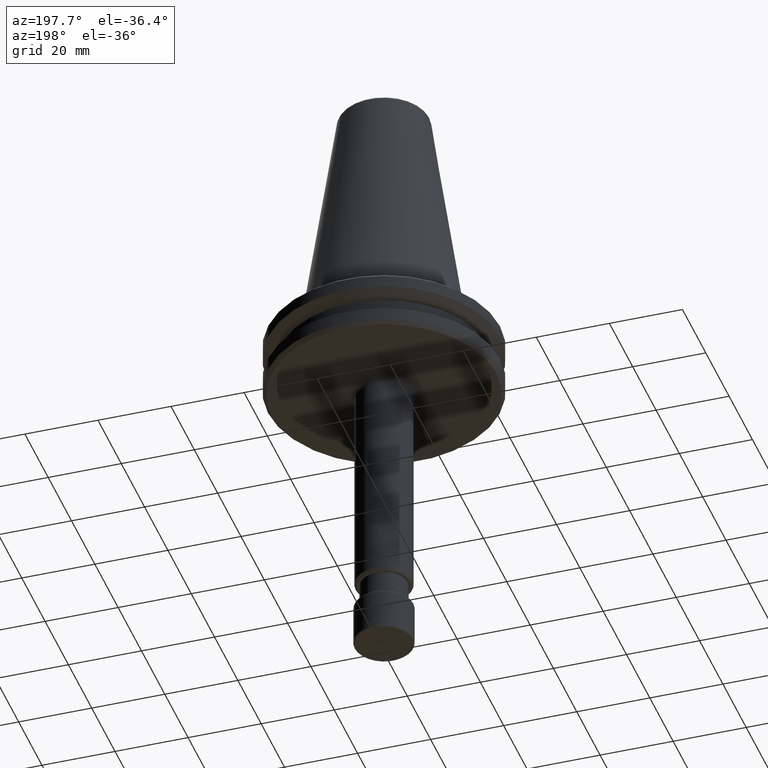
[diagram: clean part render]
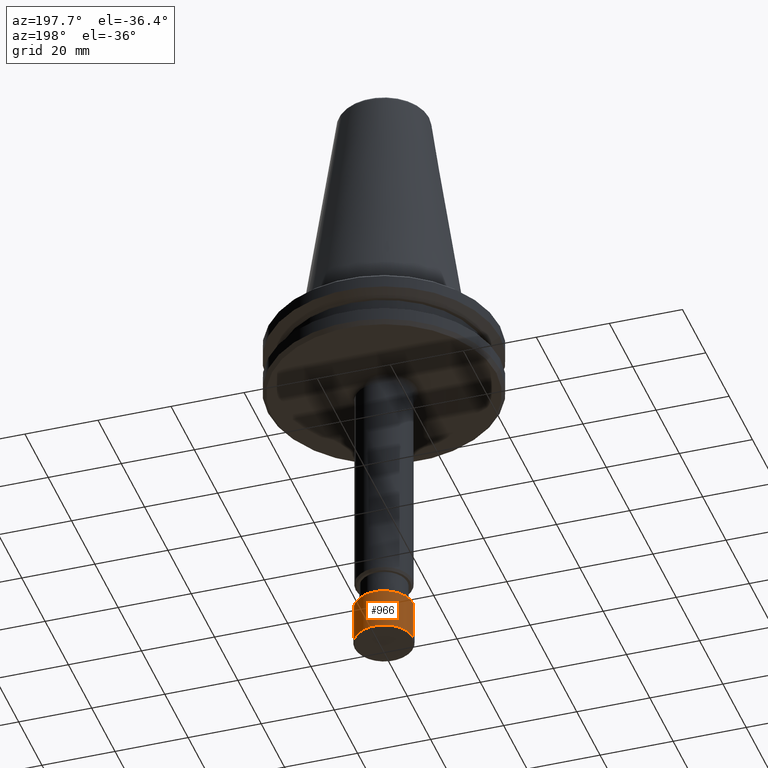
[diagram: same view with one face highlighted and labeled with its STEP entity id]
A machine part, auxiliary view. The second image highlights one B-rep face of the part: STEP entity #966.
In plain terms, the highlighted cylindrical surface (edge-blend (fillet) strip) has radius 8 mm, axis along (-0, -0, 1).
Its self-contained STEP definition (entity closure, byte-faithful):
#60 = CARTESIAN_POINT ( 'NONE',  ( 8.000000000000007100, 0.0000000000000000000, 185.3618079967774900 ) ) ;
#79 = DIRECTION ( 'NONE',  ( 1.000000000000000000, 0.0000000000000000000, 0.0000000000000000000 ) ) ;
#85 = EDGE_LOOP ( 'NONE', ( #1027, #749, #219, #1186 ) ) ;
#90 = CARTESIAN_POINT ( 'NONE',  ( 0.0000000000000000000, 0.0000000000000000000, 185.3618079967774900 ) ) ;
#172 = DIRECTION ( 'NONE',  ( -0.0000000000000000000, -0.0000000000000000000, 1.000000000000000000 ) ) ;
#175 = DIRECTION ( 'NONE',  ( -0.0000000000000000000, -0.0000000000000000000, 1.000000000000000000 ) ) ;
#181 = CARTESIAN_POINT ( 'NONE',  ( -8.000000000000007100, 9.797174393178835500E-016, 185.3618079967774900 ) ) ;
#219 = ORIENTED_EDGE ( 'NONE', *, *, #389, .F. ) ;
#223 = EDGE_CURVE ( 'NONE', #1125, #811, #391, .T. ) ;
#259 = CARTESIAN_POINT ( 'NONE',  ( 0.0000000000000000000, 0.0000000000000000000, -6.334513274300013200 ) ) ;
#266 = CYLINDRICAL_SURFACE ( 'NONE', #723, 8.000000000000007100 ) ;
#307 = VECTOR ( 'NONE', #321, 1000.000000000000000 ) ;
#321 = DIRECTION ( 'NONE',  ( -0.0000000000000000000, -0.0000000000000000000, 1.000000000000000000 ) ) ;
#389 = EDGE_CURVE ( 'NONE', #879, #1006, #838, .T. ) ;
#391 = CIRCLE ( 'NONE', #935, 8.000000000000007100 ) ;
#424 = DIRECTION ( 'NONE',  ( -0.0000000000000000000, -0.0000000000000000000, 1.000000000000000000 ) ) ;
#471 = LINE ( 'NONE', #60, #307 ) ;
#507 = AXIS2_PLACEMENT_3D ( 'NONE', #933, #175, #1217 ) ;
#553 = FACE_OUTER_BOUND ( 'NONE', #85, .T. ) ;
#642 = DIRECTION ( 'NONE',  ( 1.000000000000000000, 0.0000000000000000000, 0.0000000000000000000 ) ) ;
#661 = CARTESIAN_POINT ( 'NONE',  ( 8.000000000000007100, 0.0000000000000000000, 4.710681894100011000 ) ) ;
#723 = AXIS2_PLACEMENT_3D ( 'NONE', #90, #424, #79 ) ;
#749 = ORIENTED_EDGE ( 'NONE', *, *, #884, .T. ) ;
#754 = DIRECTION ( 'NONE',  ( -0.0000000000000000000, -0.0000000000000000000, 1.000000000000000000 ) ) ;
#811 = VERTEX_POINT ( 'NONE', #907 ) ;
#838 = CIRCLE ( 'NONE', #507, 8.000000000000007100 ) ;
#855 = VECTOR ( 'NONE', #754, 1000.000000000000000 ) ;
#879 = VERTEX_POINT ( 'NONE', #661 ) ;
#884 = EDGE_CURVE ( 'NONE', #811, #1006, #1087, .T. ) ;
#907 = CARTESIAN_POINT ( 'NONE',  ( -8.000000000000007100, 9.797174393178833500E-016, -6.334513274300013200 ) ) ;
#933 = CARTESIAN_POINT ( 'NONE',  ( 0.0000000000000000000, 0.0000000000000000000, 4.710681894100011000 ) ) ;
#935 = AXIS2_PLACEMENT_3D ( 'NONE', #259, #172, #642 ) ;
#966 = ADVANCED_FACE ( 'NONE', ( #553 ), #266, .T. ) ;
#979 = CARTESIAN_POINT ( 'NONE',  ( 8.000000000000007100, 0.0000000000000000000, -6.334513274300013200 ) ) ;
#1006 = VERTEX_POINT ( 'NONE', #1008 ) ;
#1008 = CARTESIAN_POINT ( 'NONE',  ( -8.000000000000007100, 9.797174393178835500E-016, 4.710681894100011000 ) ) ;
#1027 = ORIENTED_EDGE ( 'NONE', *, *, #223, .T. ) ;
#1032 = EDGE_CURVE ( 'NONE', #1125, #879, #471, .T. ) ;
#1087 = LINE ( 'NONE', #181, #855 ) ;
#1125 = VERTEX_POINT ( 'NONE', #979 ) ;
#1186 = ORIENTED_EDGE ( 'NONE', *, *, #1032, .F. ) ;
#1217 = DIRECTION ( 'NONE',  ( 1.000000000000000000, 0.0000000000000000000, 0.0000000000000000000 ) ) ;